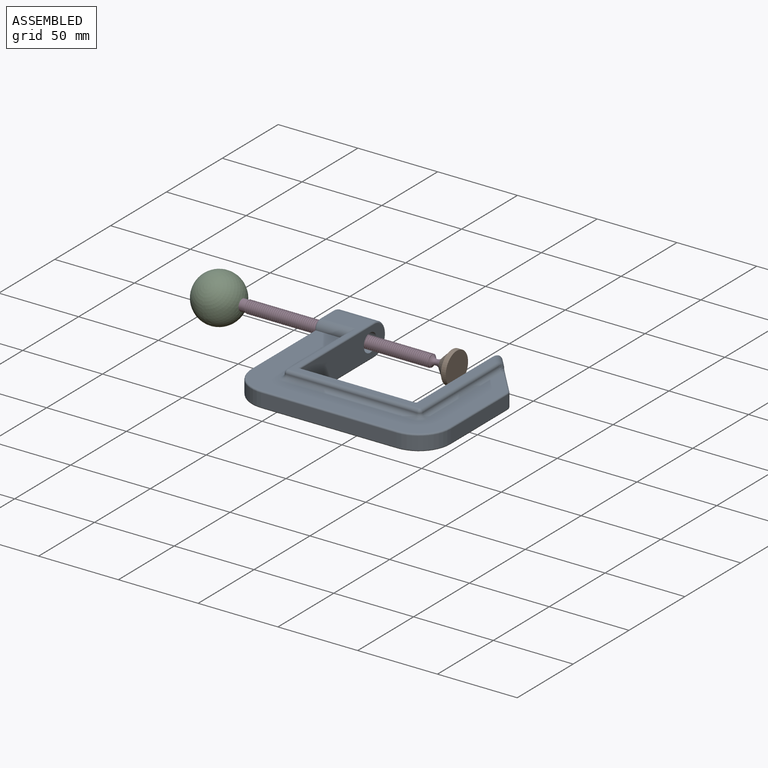
[diagram: assembled view]
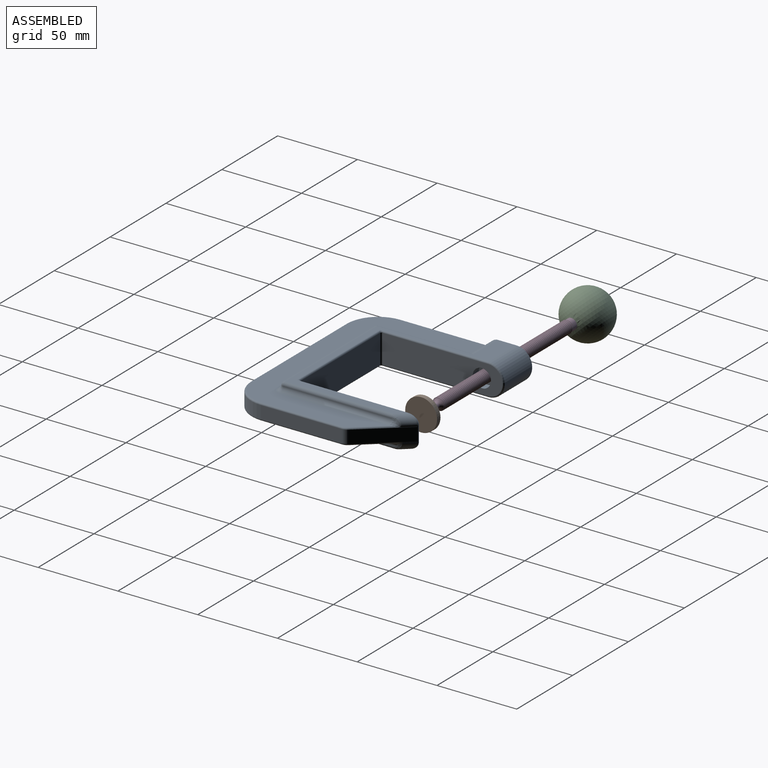
[diagram: assembled view, second angle]
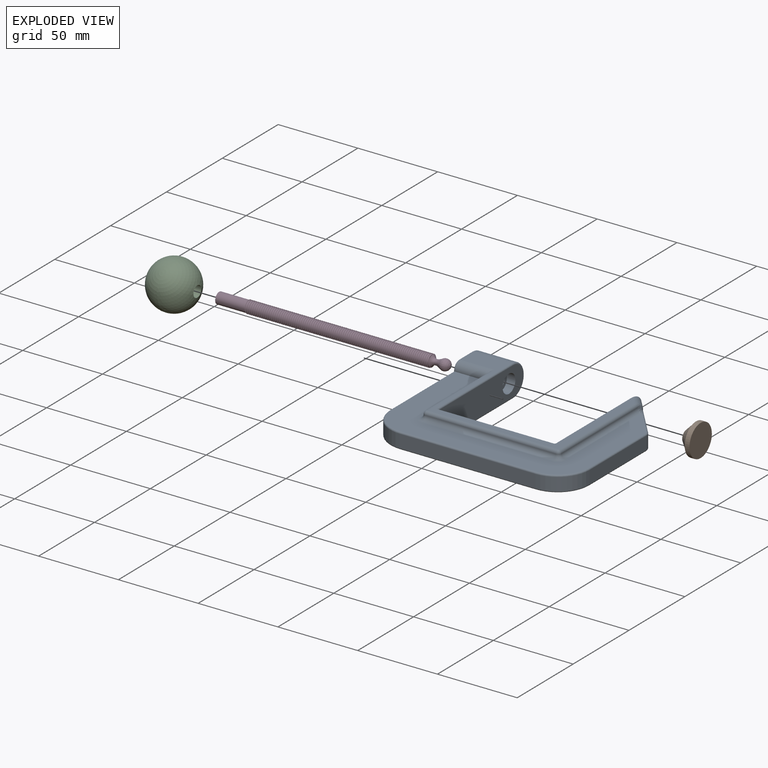
[diagram: exploded view]
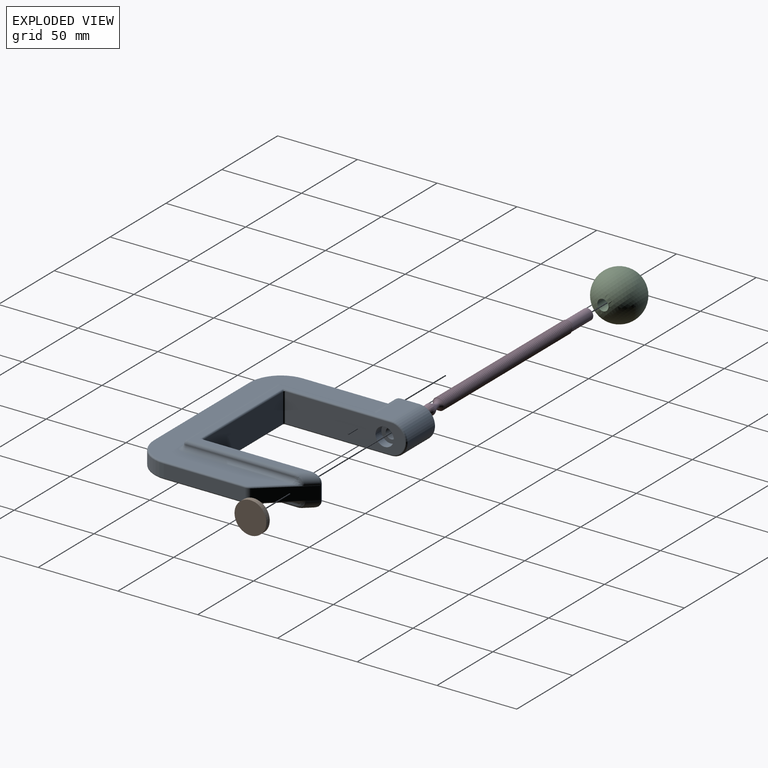
[diagram: exploded view, second angle]
ASSEMBLY  parts=4 mates=3
PART A: 90 faces, bbox 128.8x106x22.2 mm
  f0: cylinder r=3mm len=20.27mm, axis (1,0,0), area 38.4mm2, adj f58,f59,f60,f88
  f1: plane 123x88.12mm, normal (0,0,1), area 3643.4mm2, adj f19,f51,f52,f53,f54,f55,f56,f57
  f2: plane 123x89.02mm, normal (0,0,-1), area 3736.9mm2, adj f18,f39,f40,f41,f42,f43,f44,f45
  f3: plane 82.14x18.14mm, normal (-1,0,0), area 819.2mm2, adj f13,f45,f46,f47,f48,f49,f50,f51
  f4: plane 85x8mm, normal (0,-1,0), area 680mm2, adj f12,f13,f43,f53
  f5: plane 50.77x8mm, normal (1,0,0), area 406.2mm2, adj f12,f14,f41,f55
  f6: plane 26.92x23.04mm, normal (0.76,0.65,0), area 283.5mm2, adj f14,f34,f39,f57
  f7: plane 73.29x18mm, normal (-1,0,0), area 1308.7mm2, adj f30,f32,f34,f36,f38,f68
  f8: plane 71x18mm, normal (0,1,0), area 1278mm2, adj f29,f37,f65,f68
  f9: plane 75x18mm, normal (1,0,0), area 1212.5mm2, adj f31,f33,f35,f65,f89
  f10: plane 102.79x72.95mm, normal (0,0,-1), area 953.1mm2, adj f16,f17,f18,f20,f22,f23,f35,f37
  f11: plane 103.57x73.13mm, normal (0,0,1), area 1038.1mm2, adj f15,f17,f19,f25,f26,f27,f29,f30
  f12: cylinder r=20mm len=20mm, axis (0,0,-1), area 251.3mm2, adj f4,f5,f42,f54
  f13: cylinder r=20mm len=20mm, axis (0,0,1), area 251.3mm2, adj f3,f4,f44,f52
  f14: cylinder r=5mm len=8mm, axis (0,0,-1), area 28.3mm2, adj f5,f6,f40,f56
  f15: cylinder r=5mm len=12.13mm, axis (0.65,-0.76,0), area 62.5mm2, adj f11,f28,f32,f86
  f16: cylinder r=5mm len=11.22mm, axis (0.65,-0.76,0), area 52.9mm2, adj f10,f21,f36,f77
  f17: cylinder r=10mm len=24mm, axis (1,0,0), area 754mm2, adj f10,f11,f33,f48
  f18: cylinder r=5mm len=21.66mm, axis (1,0,0), area 154.2mm2, adj f2,f10,f20,f46,f70
  f19: cylinder r=5mm len=21.66mm, axis (-1,0,0), area 154.2mm2, adj f1,f11,f25,f50,f79
  f20: cylinder r=2mm len=60.33mm, axis (0,-1,0), area 183.2mm2, adj f10,f18,f24,f70
  f21: bspline ~5.89x5.37mm, area 14.6mm2, adj f16,f22,f75,f76
  f22: cylinder r=2mm len=68.54mm, axis (0.01,1,0), area 215.3mm2, adj f10,f21,f63,f74
  f23: cylinder r=2mm len=80.62mm, axis (1,0,0), area 253.3mm2, adj f10,f24,f63,f72
  f24: sphere r=2mm, area 6.3mm2, adj f20,f23,f71
  f25: cylinder r=2mm len=60.51mm, axis (0,1,0), area 183.8mm2, adj f11,f19,f61,f79
  f26: cylinder r=2mm len=81.91mm, axis (-1,0,0), area 257.3mm2, adj f11,f61,f62,f81
  f27: cylinder r=2mm len=67.79mm, axis (0,-1,0), area 213mm2, adj f11,f28,f62,f83
  f28: bspline ~6.97x6.08mm, area 14.7mm2, adj f15,f27,f84,f85
  f29: cylinder r=1mm len=75mm, axis (1,0,0), area 114.7mm2, adj f8,f11,f66,f69
  f30: cylinder r=1mm len=69.14mm, axis (0,1,0), area 107mm2, adj f7,f11,f32,f69
  f31: cylinder r=1mm len=68mm, axis (0,-1,0), area 105.2mm2, adj f9,f11,f33,f66
  f32: bspline ~10.04x6.48mm, area 19.1mm2, adj f7,f15,f30,f34,f87
  f33: torus R=9mm, axis (1,0,0), area 47.6mm2, adj f9,f17,f31,f35
  f34: cylinder r=1mm len=10mm, axis (0,0,1), area 23.9mm2, adj f6,f7,f32,f36,f39,f57,f78,f87
  f35: cylinder r=1mm len=68mm, axis (0,-1,0), area 105.2mm2, adj f9,f10,f33,f64
  f36: bspline ~10.04x6.48mm, area 19.1mm2, adj f7,f16,f34,f38,f78
  f37: cylinder r=1mm len=75mm, axis (1,0,0), area 114.7mm2, adj f8,f10,f64,f67
  f38: cylinder r=1mm len=69.14mm, axis (0,1,0), area 107mm2, adj f7,f10,f36,f67
  f39: cylinder r=1mm len=27.65mm, axis (-0.65,0.76,0), area 40.4mm2, adj f2,f6,f34,f40,f76,f77,f78
  f40: torus R=4mm, axis (0,0,1), area 5.2mm2, adj f2,f14,f39,f41
  f41: cylinder r=1mm len=50.77mm, axis (0,1,0), area 79.8mm2, adj f2,f5,f40,f42
  f42: torus R=19mm, axis (0,0,1), area 48.5mm2, adj f2,f12,f41,f43
  f43: cylinder r=1mm len=85mm, axis (1,0,0), area 133.5mm2, adj f2,f4,f42,f44
  f44: torus R=19mm, axis (0,0,1), area 48.5mm2, adj f2,f13,f43,f45
  f45: cylinder r=1mm len=57.64mm, axis (0,-1,0), area 89.7mm2, adj f2,f3,f44,f46
  f46: torus R=4mm, axis (1,0,0), area 12.3mm2, adj f3,f18,f45,f47
  f47: cylinder r=1mm len=11.48mm, axis (0,1,0), area 18mm2, adj f3,f10,f46,f48
  f48: torus R=9mm, axis (1,0,0), area 47.6mm2, adj f3,f17,f47,f49
  f49: cylinder r=1mm len=11.48mm, axis (0,1,0), area 18mm2, adj f3,f11,f48,f50
  f50: torus R=4mm, axis (1,0,0), area 12.3mm2, adj f3,f19,f49,f51
  f51: cylinder r=1mm len=57.64mm, axis (0,1,0), area 89.7mm2, adj f1,f3,f50,f52
  f52: torus R=19mm, axis (0,0,1), area 48.5mm2, adj f1,f13,f51,f53
  f53: cylinder r=1mm len=85mm, axis (-1,0,0), area 133.5mm2, adj f1,f4,f52,f54
  f54: torus R=19mm, axis (0,0,1), area 48.5mm2, adj f1,f12,f53,f55
  f55: cylinder r=1mm len=50.77mm, axis (0,-1,0), area 79.8mm2, adj f1,f5,f54,f56
  f56: torus R=4mm, axis (0,0,1), area 5.2mm2, adj f1,f14,f55,f57
  f57: cylinder r=1mm len=27.65mm, axis (0.65,-0.76,0), area 38.7mm2, adj f1,f6,f34,f56,f85,f86,f87
  f58: cone r=3.5mm half-angle=45deg, axis (-1,0,0), area 6.3mm2, adj f0,f3,f59,f60
  f59: bspline ~21.96x8.93mm, area 356mm2, adj f0,f3,f58,f60,f88
  f60: bspline ~21.75x8.93mm, area 357mm2, adj f0,f3,f58,f59,f88
  f61: sphere r=2mm, area 6.3mm2, adj f25,f26,f80
  f62: sphere r=2mm, area 6.3mm2, adj f26,f27,f82
  f63: sphere r=2mm, area 6.3mm2, adj f22,f23,f73
  f64: bspline ~2x2mm, area 1.1mm2, adj f35,f37,f65
  f65: cylinder r=1mm len=18mm, axis (0,0,-1), area 28.3mm2, adj f8,f9,f64,f66
  f66: bspline ~2x2mm, area 1.1mm2, adj f29,f31,f65
  f67: bspline ~2x2mm, area 1.1mm2, adj f37,f38,f68
  f68: cylinder r=1mm len=18mm, axis (0,0,1), area 28.3mm2, adj f7,f8,f67,f69
  f69: bspline ~2x2mm, area 1.1mm2, adj f29,f30,f68
  f70: cylinder r=3mm len=56.33mm, axis (0,-1,0), area 263.1mm2, adj f2,f18,f20,f71
  f71: torus R=5mm, axis (0,0,1), area 22.9mm2, adj f2,f24,f70,f72
  f72: cylinder r=3mm len=80.62mm, axis (1,0,0), area 379.9mm2, adj f2,f23,f71,f73
  f73: torus R=5mm, axis (0,0,1), area 22.8mm2, adj f2,f63,f72,f74
  f74: cylinder r=3mm len=68.54mm, axis (0.01,1,0), area 322.9mm2, adj f2,f22,f73,f75
  f75: bspline ~3.01x3mm, area 1.6mm2, adj f2,f21,f74,f76
  f76: bspline ~6.6x3.9mm, area 16.9mm2, adj f21,f39,f75,f77
  f77: cylinder r=3mm len=5.37mm, axis (-0.65,0.76,0), area 3.7mm2, adj f16,f39,f76,f78
  f78: bspline ~1.05x0.98mm, area 0.2mm2, adj f34,f36,f39,f77
  f79: cylinder r=3mm len=56.51mm, axis (0,-1,0), area 263.9mm2, adj f1,f19,f25,f80
  f80: torus R=5mm, axis (0,0,1), area 22.9mm2, adj f1,f61,f79,f81
  f81: cylinder r=3mm len=81.91mm, axis (1,0,0), area 386mm2, adj f1,f26,f80,f82
  f82: torus R=5mm, axis (0,0,1), area 22.9mm2, adj f1,f62,f81,f83
  f83: cylinder r=3mm len=67.79mm, axis (0,1,0), area 319.5mm2, adj f1,f27,f82,f84
  f84: bspline ~3x3mm, area 1.5mm2, adj f1,f28,f83,f85
  f85: bspline ~6.06x3.9mm, area 17.1mm2, adj f28,f57,f84,f86
  f86: cylinder r=3mm len=6.23mm, axis (0.65,-0.76,0), area 4.3mm2, adj f15,f57,f85,f87
  f87: bspline ~1.05x0.97mm, area 0.2mm2, adj f32,f34,f57,f86
  f88: plane 11.99x11.99mm, normal (1,0,0), area 67.3mm2, adj f0,f59,f60,f89
  f89: cylinder r=5.72mm len=11.44mm, axis (1,0,0), area 187.9mm2, adj f9,f88
PART B: 6 faces, bbox 20x20x8.9 mm
  f0: plane 20x20mm, normal (0,0,1), area 17.8mm2, adj f1,f3
  f1: cylinder r=10mm len=20mm, axis (0,0,-1), area 188.5mm2, adj f0,f2
  f2: plane 20x20mm, normal (0,0,-1), area 314.2mm2, adj f1
  f3: cone r=9.81mm half-angle=45deg, axis (0,0,-1), area 354.7mm2, adj f0,f4
  f4: cylinder r=3.81mm len=7.62mm, axis (0,0,1), area 141.3mm2, adj f3,f5
  f5: plane 7.62x7.62mm, normal (0,0,1), area 45.6mm2, adj f4
PART C: 3 faces, bbox 30x30x30 mm
  f0: sphere r=15mm, area 2788.4mm2, adj f1
  f1: cylinder r=3.5mm len=14.59mm, axis (0,0,1), area 320.8mm2, adj f0,f2
  f2: plane 7x7mm, normal (0,0,-1), area 38.5mm2, adj f1
PART D: 107 faces, bbox 145.3x7.9x9.1 mm
  f0: bspline ~15.08x8.93mm, area 110.1mm2, adj f1,f2,f3,f4,f5,f6,f7,f8
  f1: bspline ~15.08x8.93mm, area 111.7mm2, adj f0,f2,f3,f4,f5,f6,f7,f8
  f2: cylinder r=3.5mm len=7mm, axis (-1,0,0), area 18.3mm2, adj f0,f1,f3,f13,f102
  f3: cylinder r=3.5mm len=7mm, axis (-1,0,0), area 18.3mm2, adj f0,f1,f2,f4
  f4: cylinder r=3.5mm len=7mm, axis (-1,0,0), area 18.3mm2, adj f0,f1,f3,f5
  f5: cylinder r=3.5mm len=7mm, axis (-1,0,0), area 18.3mm2, adj f0,f1,f4,f6
  f6: cylinder r=3.5mm len=7mm, axis (-1,0,0), area 18.3mm2, adj f0,f1,f5,f7
  f7: cylinder r=3.5mm len=7mm, axis (-1,0,0), area 18.3mm2, adj f0,f1,f6,f8
  f8: cylinder r=3.5mm len=7mm, axis (-1,0,0), area 18.3mm2, adj f0,f1,f7,f9
  f9: cylinder r=3.5mm len=7mm, axis (-1,0,0), area 18.3mm2, adj f0,f1,f8,f10
  f10: cylinder r=3.5mm len=7mm, axis (-1,0,0), area 18.3mm2, adj f0,f1,f9,f11
  f11: cylinder r=3.5mm len=7mm, axis (-1,0,0), area 18.3mm2, adj f0,f1,f10,f12
  f12: cylinder r=3.5mm len=7mm, axis (-1,0,0), area 24.4mm2, adj f0,f1,f11,f105
  f13: cylinder r=3.5mm len=7mm, axis (-1,0,0), area 18.2mm2, adj f1,f2,f14,f102,f103
  f14: cylinder r=3.5mm len=7mm, axis (-1,0,0), area 18.3mm2, adj f13,f15,f102,f103
  f15: cylinder r=3.5mm len=7mm, axis (-1,0,0), area 18.3mm2, adj f14,f16,f102,f103
  f16: cylinder r=3.5mm len=7mm, axis (-1,0,0), area 18.3mm2, adj f15,f17,f102,f103
  f17: cylinder r=3.5mm len=7mm, axis (-1,0,0), area 18.3mm2, adj f16,f18,f102,f103
  f18: cylinder r=3.5mm len=7mm, axis (-1,0,0), area 18.3mm2, adj f17,f19,f102,f103
  f19: cylinder r=3.5mm len=7mm, axis (-1,0,0), area 18.3mm2, adj f18,f20,f102,f103
  f20: cylinder r=3.5mm len=7mm, axis (-1,0,0), area 18.3mm2, adj f19,f21,f102,f103
  f21: cylinder r=3.5mm len=7mm, axis (-1,0,0), area 18.3mm2, adj f20,f22,f102,f103
  f22: cylinder r=3.5mm len=7mm, axis (-1,0,0), area 18.3mm2, adj f21,f23,f102,f103
  f23: cylinder r=3.5mm len=7mm, axis (-1,0,0), area 18.3mm2, adj f22,f24,f102,f103
  f24: cylinder r=3.5mm len=7mm, axis (-1,0,0), area 18.3mm2, adj f23,f25,f102,f103
  f25: cylinder r=3.5mm len=7mm, axis (-1,0,0), area 18.3mm2, adj f24,f26,f102,f103
  f26: cylinder r=3.5mm len=7mm, axis (-1,0,0), area 18.3mm2, adj f25,f27,f102,f103
  f27: cylinder r=3.5mm len=7mm, axis (-1,0,0), area 18.3mm2, adj f26,f28,f102,f103
  f28: cylinder r=3.5mm len=7mm, axis (-1,0,0), area 18.3mm2, adj f27,f29,f102,f103
  f29: cylinder r=3.5mm len=7mm, axis (-1,0,0), area 18.3mm2, adj f28,f30,f102,f103
  f30: cylinder r=3.5mm len=7mm, axis (-1,0,0), area 18.3mm2, adj f29,f31,f102,f103
  f31: cylinder r=3.5mm len=7mm, axis (-1,0,0), area 18.3mm2, adj f30,f32,f102,f103
  f32: cylinder r=3.5mm len=7mm, axis (-1,0,0), area 18.3mm2, adj f31,f33,f100,f102,f103
  f33: cylinder r=3.5mm len=7mm, axis (-1,0,0), area 18.2mm2, adj f32,f34,f100,f101,f103
  f34: cylinder r=3.5mm len=7mm, axis (-1,0,0), area 18.3mm2, adj f33,f35,f100,f101
  f35: cylinder r=3.5mm len=7mm, axis (-1,0,0), area 18.3mm2, adj f34,f36,f100,f101
  f36: cylinder r=3.5mm len=7mm, axis (-1,0,0), area 18.3mm2, adj f35,f37,f100,f101
  f37: cylinder r=3.5mm len=7mm, axis (-1,0,0), area 18.3mm2, adj f36,f38,f100,f101
  f38: cylinder r=3.5mm len=7mm, axis (-1,0,0), area 18.3mm2, adj f37,f39,f100,f101
  f39: cylinder r=3.5mm len=7mm, axis (-1,0,0), area 18.3mm2, adj f38,f40,f100,f101
  f40: cylinder r=3.5mm len=7mm, axis (-1,0,0), area 18.3mm2, adj f39,f41,f100,f101
  f41: cylinder r=3.5mm len=7mm, axis (-1,0,0), area 18.3mm2, adj f40,f42,f100,f101
  f42: cylinder r=3.5mm len=7mm, axis (-1,0,0), area 18.3mm2, adj f41,f43,f100,f101
  f43: cylinder r=3.5mm len=7mm, axis (-1,0,0), area 18.3mm2, adj f42,f44,f100,f101
  f44: cylinder r=3.5mm len=7mm, axis (-1,0,0), area 18.3mm2, adj f43,f45,f100,f101
  f45: cylinder r=3.5mm len=7mm, axis (-1,0,0), area 18.3mm2, adj f44,f46,f100,f101
  f46: cylinder r=3.5mm len=7mm, axis (-1,0,0), area 18.3mm2, adj f45,f47,f100,f101
  f47: cylinder r=3.5mm len=7mm, axis (-1,0,0), area 18.3mm2, adj f46,f48,f100,f101
  f48: cylinder r=3.5mm len=7mm, axis (-1,0,0), area 18.3mm2, adj f47,f49,f100,f101
  f49: cylinder r=3.5mm len=7mm, axis (-1,0,0), area 18.3mm2, adj f48,f50,f100,f101
  f50: cylinder r=3.5mm len=7mm, axis (-1,0,0), area 18.3mm2, adj f49,f51,f100,f101
  f51: cylinder r=3.5mm len=7mm, axis (-1,0,0), area 18.3mm2, adj f50,f52,f100,f101
  f52: cylinder r=3.5mm len=7mm, axis (-1,0,0), area 18.3mm2, adj f51,f53,f98,f100,f101
  f53: cylinder r=3.5mm len=7mm, axis (-1,0,0), area 18.2mm2, adj f52,f54,f98,f99,f101
  f54: cylinder r=3.5mm len=7mm, axis (-1,0,0), area 18.3mm2, adj f53,f55,f98,f99
  f55: cylinder r=3.5mm len=7mm, axis (-1,0,0), area 18.3mm2, adj f54,f56,f98,f99
  f56: cylinder r=3.5mm len=7mm, axis (-1,0,0), area 18.3mm2, adj f55,f57,f98,f99
  f57: cylinder r=3.5mm len=7mm, axis (-1,0,0), area 18.3mm2, adj f56,f58,f98,f99
  f58: cylinder r=3.5mm len=7mm, axis (-1,0,0), area 18.3mm2, adj f57,f59,f98,f99
  f59: cylinder r=3.5mm len=7mm, axis (-1,0,0), area 18.3mm2, adj f58,f60,f98,f99
  f60: cylinder r=3.5mm len=7mm, axis (-1,0,0), area 18.3mm2, adj f59,f61,f98,f99
  f61: cylinder r=3.5mm len=7mm, axis (-1,0,0), area 18.3mm2, adj f60,f62,f98,f99
  f62: cylinder r=3.5mm len=7mm, axis (-1,0,0), area 18.3mm2, adj f61,f63,f98,f99
  f63: cylinder r=3.5mm len=7mm, axis (-1,0,0), area 18.3mm2, adj f62,f64,f98,f99
  f64: cylinder r=3.5mm len=7mm, axis (-1,0,0), area 18.3mm2, adj f63,f65,f98,f99
  f65: cylinder r=3.5mm len=7mm, axis (-1,0,0), area 18.3mm2, adj f64,f66,f98,f99
  f66: cylinder r=3.5mm len=7mm, axis (-1,0,0), area 18.3mm2, adj f65,f67,f98,f99
  f67: cylinder r=3.5mm len=7mm, axis (-1,0,0), area 18.3mm2, adj f66,f68,f98,f99
  f68: cylinder r=3.5mm len=7mm, axis (-1,0,0), area 18.3mm2, adj f67,f69,f98,f99
  f69: cylinder r=3.5mm len=7mm, axis (-1,0,0), area 18.3mm2, adj f68,f70,f98,f99
  f70: cylinder r=3.5mm len=7mm, axis (-1,0,0), area 18.3mm2, adj f69,f71,f98,f99
  f71: cylinder r=3.5mm len=7mm, axis (-1,0,0), area 18.3mm2, adj f70,f72,f98,f99
  f72: cylinder r=3.5mm len=7mm, axis (-1,0,0), area 18.3mm2, adj f71,f73,f96,f98,f99
  f73: cylinder r=3.5mm len=7mm, axis (-1,0,0), area 18.2mm2, adj f72,f74,f96,f97,f99
  f74: cylinder r=3.5mm len=7mm, axis (-1,0,0), area 18.3mm2, adj f73,f75,f96,f97
  f75: cylinder r=3.5mm len=7mm, axis (-1,0,0), area 18.3mm2, adj f74,f76,f96,f97
  f76: cylinder r=3.5mm len=7mm, axis (-1,0,0), area 18.3mm2, adj f75,f77,f96,f97
  f77: cylinder r=3.5mm len=7mm, axis (-1,0,0), area 18.3mm2, adj f76,f78,f96,f97
  f78: cylinder r=3.5mm len=7mm, axis (-1,0,0), area 18.3mm2, adj f77,f79,f96,f97
  f79: cylinder r=3.5mm len=7mm, axis (-1,0,0), area 18.3mm2, adj f78,f80,f96,f97
  f80: cylinder r=3.5mm len=7mm, axis (-1,0,0), area 18.3mm2, adj f79,f81,f96,f97
  f81: cylinder r=3.5mm len=7mm, axis (-1,0,0), area 18.3mm2, adj f80,f82,f96,f97
  f82: cylinder r=3.5mm len=7mm, axis (-1,0,0), area 18.3mm2, adj f81,f83,f96,f97
  f83: cylinder r=3.5mm len=7mm, axis (-1,0,0), area 18.3mm2, adj f82,f84,f96,f97
  f84: cylinder r=3.5mm len=7mm, axis (-1,0,0), area 18.3mm2, adj f83,f85,f96,f97
  f85: cylinder r=3.5mm len=7mm, axis (-1,0,0), area 18.3mm2, adj f84,f86,f96,f97
  f86: cylinder r=3.5mm len=7mm, axis (-1,0,0), area 18.3mm2, adj f85,f87,f96,f97
  f87: cylinder r=3.5mm len=7mm, axis (-1,0,0), area 18.3mm2, adj f86,f88,f96,f97
  f88: cylinder r=3.5mm len=7mm, axis (-1,0,0), area 18.3mm2, adj f87,f89,f96,f97
  f89: cylinder r=3.5mm len=7mm, axis (-1,0,0), area 18.3mm2, adj f88,f90,f96,f97
  f90: cylinder r=3.5mm len=7mm, axis (-1,0,0), area 18.3mm2, adj f89,f91,f96,f97
  f91: cylinder r=3.5mm len=7mm, axis (-1,0,0), area 18.3mm2, adj f90,f92,f96,f97
  f92: cylinder r=3.5mm len=7mm, axis (-1,0,0), area 18.3mm2, adj f91,f93,f96,f97
  f93: cylinder r=3.5mm len=19.89mm, axis (-1,0,0), area 419.6mm2, adj f92,f94,f95,f96,f97
  f94: plane 7x7mm, normal (1,0,0), area 38.5mm2, adj f93
  f95: plane 0.43x0.35mm, normal (0,0.95,0.31), area 0.1mm2, adj f93,f96,f97
  f96: bspline ~26.54x8.93mm, area 200.9mm2, adj f72,f73,f74,f75,f76,f77,f78,f79
  f97: bspline ~26.54x8.93mm, area 200.3mm2, adj f73,f74,f75,f76,f77,f78,f79,f80
  f98: bspline ~25.71x8.93mm, area 193.3mm2, adj f52,f53,f54,f55,f56,f57,f58,f59
  f99: bspline ~25.5x8.93mm, area 192.1mm2, adj f53,f54,f55,f56,f57,f58,f59,f60
  f100: bspline ~25.71x8.93mm, area 193.3mm2, adj f32,f33,f34,f35,f36,f37,f38,f39
  f101: bspline ~25.5x8.93mm, area 192.1mm2, adj f33,f34,f35,f36,f37,f38,f39,f40
  f102: bspline ~25.71x8.93mm, area 193.3mm2, adj f0,f2,f13,f14,f15,f16,f17,f18
  f103: bspline ~25.5x8.93mm, area 192.1mm2, adj f1,f13,f14,f15,f16,f17,f18,f19
  f104: revolved ~6.87x6.87mm, area 122.8mm2, adj f105
  f105: revolved ~6.98x6.98mm, area 91.1mm2, adj f12,f104,f106
  f106: plane 6.19x2.87mm, normal (-1,0,0), area 1.4mm2, adj f0,f1,f105
PLACE A at identity fixed
PLACE B rot(axis=(0.13,-0.98,-0.13),91deg) t=(17.84,77.54,0)mm
PLACE C rot(axis=(-0.68,-0.27,0.68),149.4deg) t=(-131.22,77.54,0)mm
PLACE D rot(axis=(0,-0.92,0.39),180deg) t=(-24.92,23.81,55.89)mm
MATE cylindrical D.f2 <-> A.f0  axis (-1,0,0) through (-131.22,77.54,0)mm
MATE fastened C.f1 <-> D.f2  axis (-1,0,0) through (-131.22,77.54,0)mm
MATE ball B.f3 <-> D.f2  axis (1,0,0) through (8.94,77.54,0)mm
